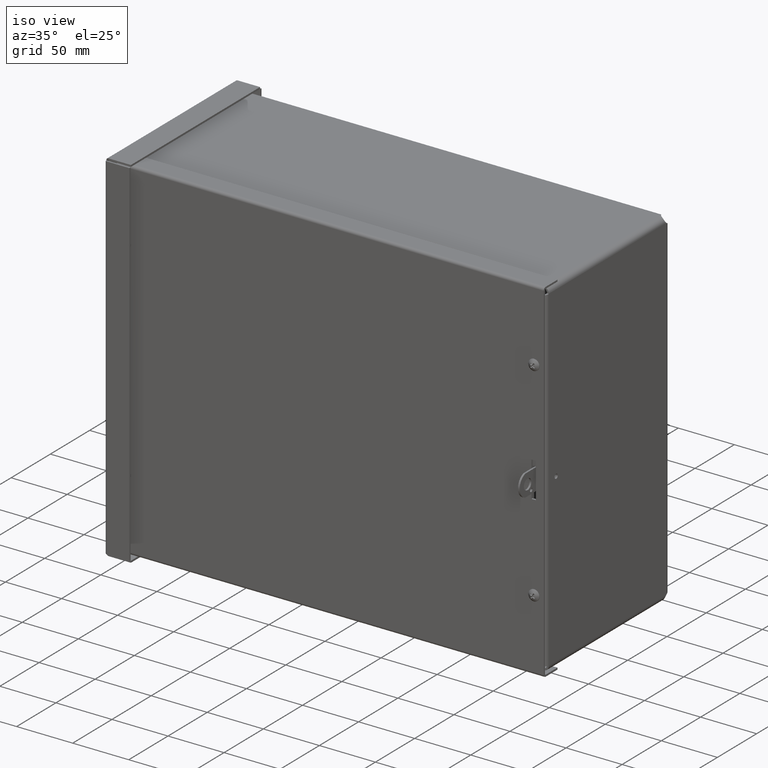
[diagram: clean part render]
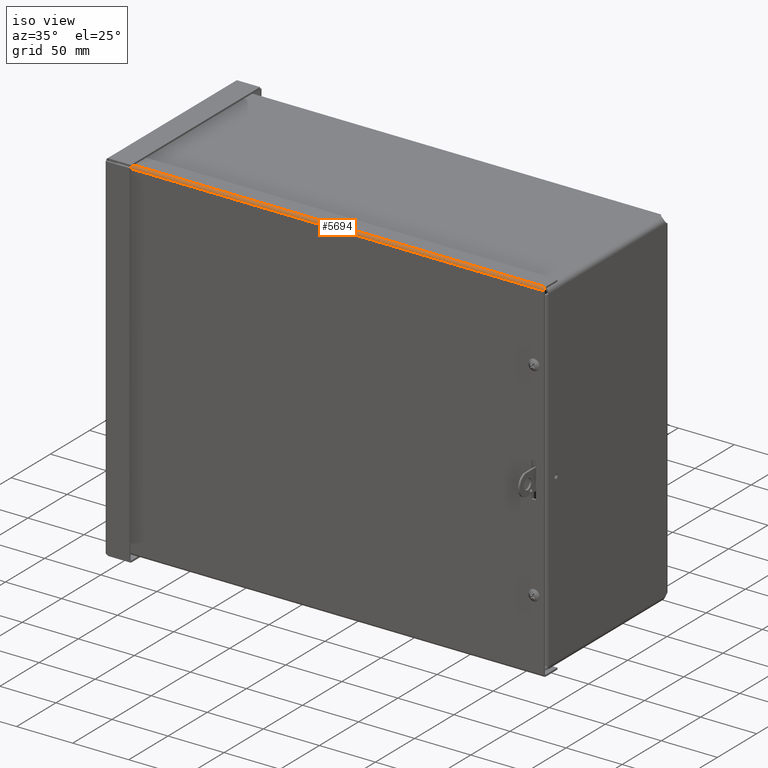
[diagram: same view with one face highlighted and labeled with its STEP entity id]
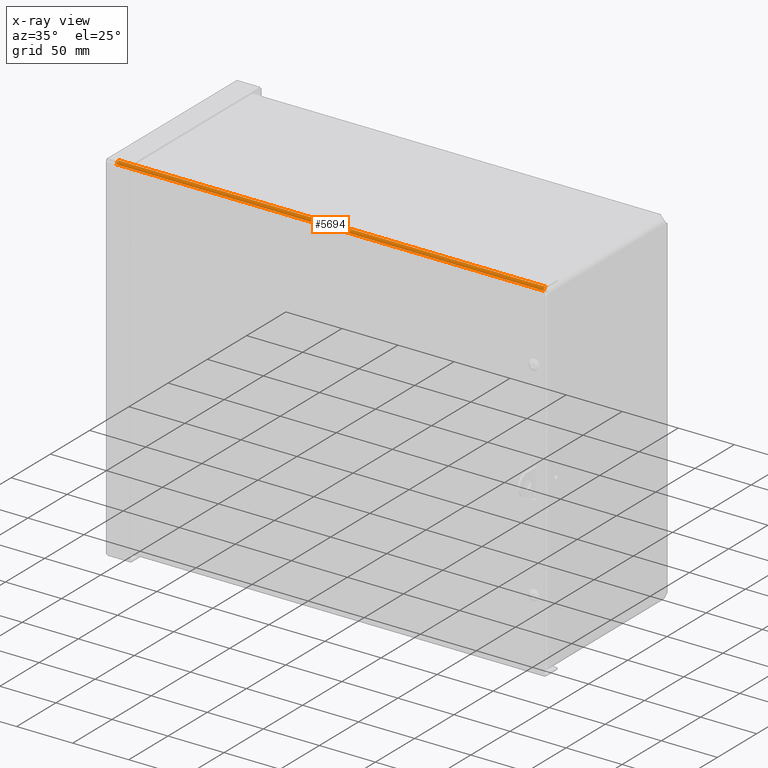
[diagram: x-ray of the same camera — body ghosted, the highlighted face saturated]
A machine part, iso view. The second image highlights one B-rep face of the part: STEP entity #5694.
The next image is the same camera in x-ray: the body ghosted, the highlighted face saturated — about 0% of this face is hidden behind the body in this view.
In plain terms, the highlighted cylindrical surface (edge-blend (fillet) strip) has radius 2.3685 mm, axis along (-1, 0, -0).
Its self-contained STEP definition (entity closure, byte-faithful):
#444=CIRCLE($,#6048,0.0932499999999995);
#445=CIRCLE($,#6049,0.0932499999999998);
#607=CYLINDRICAL_SURFACE($,#6047,0.0932499999999997);
#803=FACE_OUTER_BOUND($,#1150,.T.);
#1150=EDGE_LOOP($,(#4521,#4522,#4523,#4524));
#1848=LINE($,#9981,#2305);
#1849=LINE($,#9985,#2306);
#2305=VECTOR($,#6968,15.);
#2306=VECTOR($,#6971,15.);
#2728=VERTEX_POINT($,#9979);
#2729=VERTEX_POINT($,#9980);
#2730=VERTEX_POINT($,#9982);
#2731=VERTEX_POINT($,#9984);
#3368=EDGE_CURVE($,#2728,#2729,#1848,.T.);
#3369=EDGE_CURVE($,#2730,#2728,#444,.T.);
#3370=EDGE_CURVE($,#2731,#2730,#1849,.T.);
#3371=EDGE_CURVE($,#2729,#2731,#445,.T.);
#4521=ORIENTED_EDGE($,*,*,#3368,.F.);
#4522=ORIENTED_EDGE($,*,*,#3369,.F.);
#4523=ORIENTED_EDGE($,*,*,#3370,.F.);
#4524=ORIENTED_EDGE($,*,*,#3371,.F.);
#5694=ADVANCED_FACE($,(#803),#607,.T.);
#6047=AXIS2_PLACEMENT_3D($,#9978,#6966,#6967);
#6048=AXIS2_PLACEMENT_3D($,#9983,#6969,#6970);
#6049=AXIS2_PLACEMENT_3D($,#9986,#6972,#6973);
#6966=DIRECTION('center_axis',(-9.32470781837402E-017,1.,0.));
#6967=DIRECTION('ref_axis',(0.,0.,1.));
#6968=DIRECTION($,(9.42390784394558E-017,-1.,5.34718181367787E-033));
#6969=DIRECTION('center_axis',(-9.32470781837402E-017,1.,0.));
#6970=DIRECTION('ref_axis',(-2.9999060005493E-014,0.,1.));
#6971=DIRECTION($,(-9.32470781837402E-017,1.,0.));
#6972=DIRECTION('center_axis',(9.32470781837402E-017,-1.,0.));
#6973=DIRECTION('ref_axis',(1.,0.,5.39045609473701E-015));
#9978=CARTESIAN_POINT('Origin',(3.10925,-1.5,-0.0312499999999999));
#9979=CARTESIAN_POINT('',(3.2025,6.,-0.0312499999999995));
#9980=CARTESIAN_POINT('',(3.2025,-9.,-0.0312499999999995));
#9981=CARTESIAN_POINT($,(3.2025,-1.5,-0.0312499999999995));
#9982=CARTESIAN_POINT('',(3.10925,6.,0.062));
#9983=CARTESIAN_POINT('Origin',(3.10925,6.,-0.0312499999999999));
#9984=CARTESIAN_POINT('',(3.10925,-9.,0.062));
#9985=CARTESIAN_POINT($,(3.10925,-5.25,0.062));
#9986=CARTESIAN_POINT('Origin',(3.10925,-9.,-0.0312499999999999));